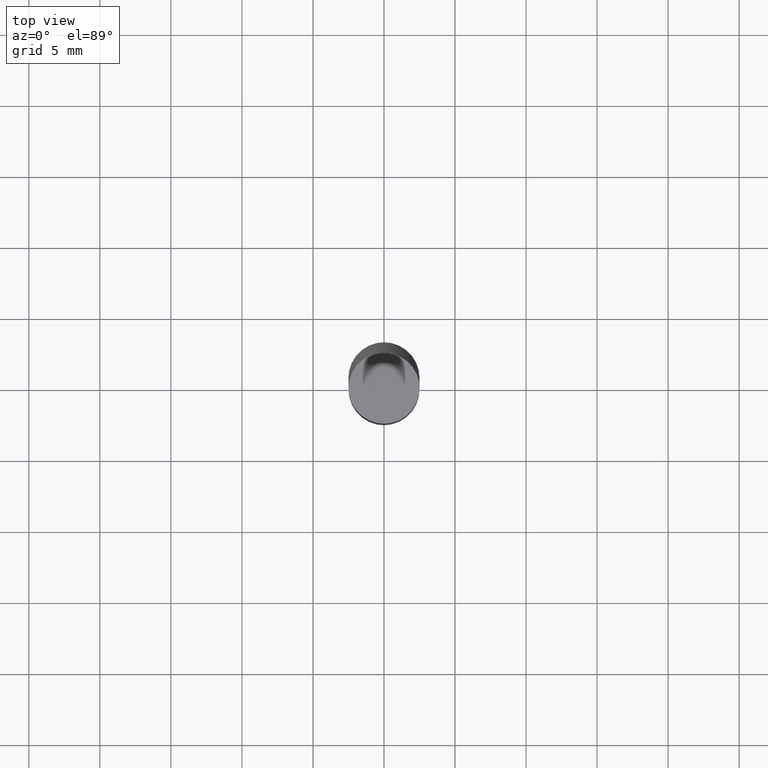
[diagram: clean part render]
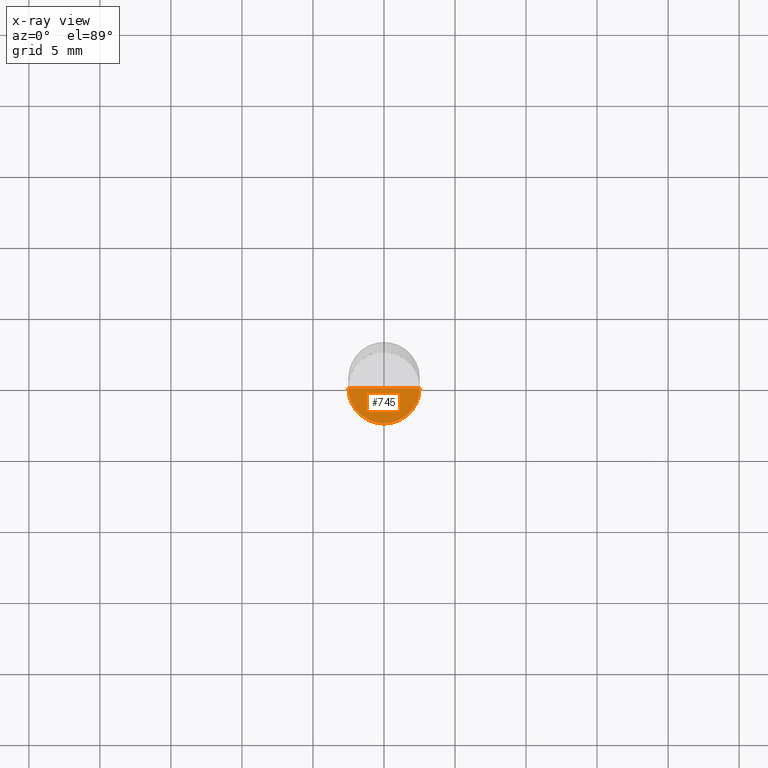
[diagram: x-ray — body ghosted, one internal face saturated and labeled with its STEP entity id]
A machine part, top view, then the same camera in x-ray: the body is ghosted and one INTERNAL B-rep face — a face not visible from any outside direction — is saturated and labeled: STEP entity #745.
In plain terms, the highlighted face is a freeform B-spline surface patch.
Its self-contained STEP definition (entity closure, byte-faithful):
#595=CARTESIAN_POINT('',(2.5,0.0,-5.0));
#599=CARTESIAN_POINT('',(-2.5,0.0,-5.0));
#600=CARTESIAN_POINT('',(0.0,0.0,-5.0));
#607=CARTESIAN_POINT('',(-2.5,-2.5,-5.0));
#608=CARTESIAN_POINT('',(0.0,-2.5,-5.0));
#609=CARTESIAN_POINT('',(2.5,-2.5,-5.0));
#730=(
BOUNDED_SURFACE()
B_SPLINE_SURFACE(1,2,(
(#599,#607,#608,#609,#595),
(#600,#600,#600,#600,#600)
), .UNSPECIFIED.,.F.,.F.,.F.)
B_SPLINE_SURFACE_WITH_KNOTS((2,2),(3,2,3),(
0.0,1.0),(
0.0,0.5,1.0), .UNSPECIFIED.)
GEOMETRIC_REPRESENTATION_ITEM()
RATIONAL_B_SPLINE_SURFACE(((1.0,0.707106781187,1.0,0.707106781187,1.0),
(1.0,0.707106781187,1.0,0.707106781187,1.0)
))
REPRESENTATION_ITEM('')
SURFACE()
);
#731=(
BOUNDED_CURVE()
B_SPLINE_CURVE(2,(#595,#609,#608,#607,#599),.UNSPECIFIED.,.F.,.F.)
B_SPLINE_CURVE_WITH_KNOTS((3,2,3),
(0.0,0.5,1.0),.UNSPECIFIED.)
CURVE()
GEOMETRIC_REPRESENTATION_ITEM()
RATIONAL_B_SPLINE_CURVE((1.0,0.707106781187,1.0,0.707106781187,1.0))
REPRESENTATION_ITEM('')
);
#732=(
BOUNDED_CURVE()
B_SPLINE_CURVE(1,(#599,#600),.UNSPECIFIED.,.F.,.F.)
B_SPLINE_CURVE_WITH_KNOTS((2,2),
(0.0,1.0),.UNSPECIFIED.)
CURVE()
GEOMETRIC_REPRESENTATION_ITEM()
RATIONAL_B_SPLINE_CURVE((1.0,1.0))
REPRESENTATION_ITEM('')
);
#733=(
BOUNDED_CURVE()
B_SPLINE_CURVE(1,(#600,#595),.UNSPECIFIED.,.F.,.F.)
B_SPLINE_CURVE_WITH_KNOTS((2,2),
(0.0,1.0),.UNSPECIFIED.)
CURVE()
GEOMETRIC_REPRESENTATION_ITEM()
RATIONAL_B_SPLINE_CURVE((1.0,1.0))
REPRESENTATION_ITEM('')
);
#734=VERTEX_POINT('',#595);
#735=VERTEX_POINT('',#599);
#736=VERTEX_POINT('',#600);
#737=EDGE_CURVE('',#734,#735,#731,.T.);
#738=EDGE_CURVE('',#735,#736,#732,.T.);
#739=EDGE_CURVE('',#736,#734,#733,.T.);
#740=ORIENTED_EDGE('',*,*,#737,.T.);
#741=ORIENTED_EDGE('',*,*,#738,.T.);
#742=ORIENTED_EDGE('',*,*,#739,.T.);
#743=EDGE_LOOP('',(#740,#741,#742));
#744=FACE_OUTER_BOUND('',#743,.T.);
#745=ADVANCED_FACE('',(#744),#730,.T.);